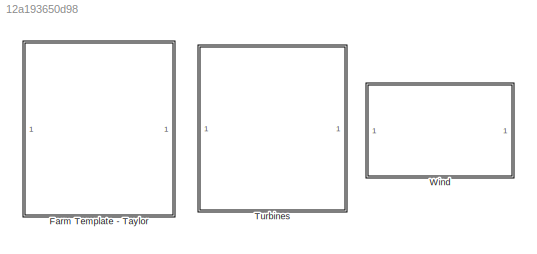
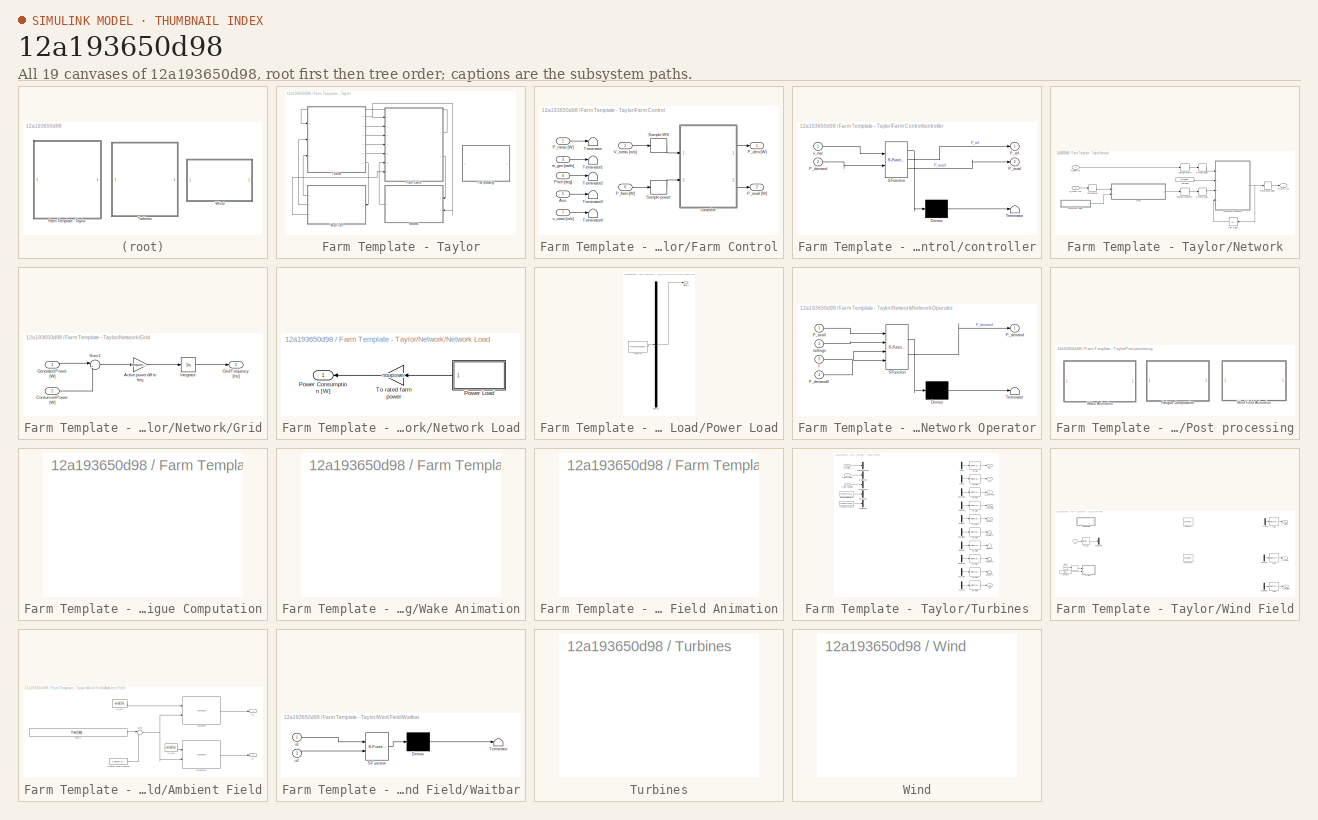
[diagram: thumbnail index - all 19 canvases of the model, root first then tree order]
MODEL slx_12a193650d98
KIND library
CONFIG AbsTol = auto
CONFIG EnableMultiTasking = on
CONFIG FixedStep = auto
CONFIG MaxStep = auto
CONFIG MinStep = auto
CONFIG RelTol = 1e-3
CONFIG SampleTimeConstraint = Unconstrained
CONFIG SolverName = ode45
CONFIG StartTime = 0.0
CONFIG StopTime = 10.0
BLOCK [SubSystem] Farm Template - Taylor
  OpenFcn = create_windfarm()
  Ports = []
BLOCK [SubSystem] Farm Template - Taylor/Farm Control
  Ports = [7, 2]
BLOCK [Inport] Farm Template - Taylor/Farm Control/ Aux
  Port = 5
BLOCK [Inport] Farm Template - Taylor/Farm Control/ v_mast [m//s]
  Port = 7
BLOCK [Outport] Farm Template - Taylor/Farm Control/P_avail [W]
  Port = 2
BLOCK [Outport] Farm Template - Taylor/Farm Control/P_dem [W]
BLOCK [Inport] Farm Template - Taylor/Farm Control/P_farm [W]
  Port = 6
BLOCK [Inport] Farm Template - Taylor/Farm Control/P_meas [W]
BLOCK [Inport] Farm Template - Taylor/Farm Control/Pitch [deg]
  Port = 4
BLOCK [ZeroOrderHold] Farm Template - Taylor/Farm Control/Sample WS
  SampleTime = wind.Ts
BLOCK [ZeroOrderHold] Farm Template - Taylor/Farm Control/Sample power
  SampleTime = wind.Ts
BLOCK [Terminator] Farm Template - Taylor/Farm Control/Terminator
BLOCK [Terminator] Farm Template - Taylor/Farm Control/Terminator1
BLOCK [Terminator] Farm Template - Taylor/Farm Control/Terminator2
BLOCK [Terminator] Farm Template - Taylor/Farm Control/Terminator3
BLOCK [Terminator] Farm Template - Taylor/Farm Control/Terminator4
BLOCK [Inport] Farm Template - Taylor/Farm Control/V_meas [m//s]
  Port = 2
BLOCK [SubSystem] Farm Template - Taylor/Farm Control/controller
  ErrorFcn = Stateflow.Translate.translate
  PermitHierarchicalResolution = ExplicitOnly
  Ports = [2, 2]
  SFBlockType = MATLAB Function
  TreatAsAtomicUnit = on
BLOCK [Demux] Farm Template - Taylor/Farm Control/controller/ Demux 
  Outputs = 1
  Ports = [1, 1]
BLOCK [S-Function] Farm Template - Taylor/Farm Control/controller/ SFunction 
  EnableBusSupport = off
  FunctionName = sf_sfun
  Parameters = parm
  PortCounts = [2 3]
  Ports = [2, 3]
  SFcnIsStateOwnerBlock = off
  SFunctionDeploymentMode = off
  Tag = Stateflow S-Function 21
BLOCK [Terminator] Farm Template - Taylor/Farm Control/controller/ Terminator 
BLOCK [Outport] Farm Template - Taylor/Farm Control/controller/P_avail
  Port = 2
BLOCK [Inport] Farm Template - Taylor/Farm Control/controller/P_demand
  Port = 2
BLOCK [Outport] Farm Template - Taylor/Farm Control/controller/P_ref
BLOCK [Inport] Farm Template - Taylor/Farm Control/controller/v_nac
BLOCK [Inport] Farm Template - Taylor/Farm Control/w_gen [rad//s]
  Port = 3
BLOCK [SubSystem] Farm Template - Taylor/Network
  Ports = [2, 1]
BLOCK [TransportDelay] Farm Template - Taylor/Network/F_meas delay
  DelayTime = parm.delay
  Ports = [1, 1]
BLOCK [SubSystem] Farm Template - Taylor/Network/Grid
  Ports = [2, 1]
BLOCK [Gain] Farm Template - Taylor/Network/Grid/Active power diff to freq
  Gain = frequencygain
BLOCK [Inport] Farm Template - Taylor/Network/Grid/Consumed Power [W]
  Port = 2
BLOCK [Inport] Farm Template - Taylor/Network/Grid/Generated Power [W]
BLOCK [Outport] Farm Template - Taylor/Network/Grid/Grid Frequency [Hz]
BLOCK [Integrator] Farm Template - Taylor/Network/Grid/Integrator
  InitialCondition = 50
  LimitOutput = on
  LowerSaturationLimit = 0
  Ports = [1, 1]
  UpperSaturationLimit = 100
BLOCK [Sum] Farm Template - Taylor/Network/Grid/Sum1
  Inputs = |+-
  Ports = [2, 1]
BLOCK [SubSystem] Farm Template - Taylor/Network/Network Load
  Ports = [0, 1]
BLOCK [Outport] Farm Template - Taylor/Network/Network Load/Power Consumption [W]
BLOCK [SubSystem] Farm Template - Taylor/Network/Network Load/Power Load
  ClipboardFcn = sigbuilder_block('clipboard');
  CloseFcn = sigbuilder_block('close');
  ContinueFcn = sigbuilder_block('continue')
  CopyFcn = sigbuilder_block('copy');
  DeleteFcn = sigbuilder_block('delete');
  LoadFcn = sigbuilder_block('load');
  MaskHideContents = on
  ModelCloseFcn = sigbuilder_block('modelClose');
  NameChangeFcn = sigbuilder_block('namechange');
  NameLocation = top
  OpenFcn = sigbuilder_block('open',[437.6 199.2 550.4 400 ]);
  PauseFcn = sigbuilder_block('pause')
  Ports = [0, 1]
  PreSaveFcn = sigbuilder_block('preSave');
  StartFcn = sigbuilder_block('start');
  StopFcn = sigbuilder_block('stop');
  Tag = STV Subsys
BLOCK [Demux] Farm Template - Taylor/Network/Network Load/Power Load/Demux
  DisplayOption = none
  Outputs = 1
  Ports = [1, 1]
  Tag = STV Demux
BLOCK [FromWorkspace] Farm Template - Taylor/Network/Network Load/Power Load/FromWs
  Tag = STV FromWs
  VariableName = tuvar
BLOCK [Outport] Farm Template - Taylor/Network/Network Load/Power Load/Signal 1
  Tag = STV Outport
BLOCK [Gain] Farm Template - Taylor/Network/Network Load/To rated farm power
  Gain = maxpower
  NameLocation = top
BLOCK [SubSystem] Farm Template - Taylor/Network/Network Operator
  ErrorFcn = Stateflow.Translate.translate
  PermitHierarchicalResolution = ExplicitOnly
  Ports = [4, 1]
  SFBlockType = MATLAB Function
  TreatAsAtomicUnit = on
BLOCK [Demux] Farm Template - Taylor/Network/Network Operator/ Demux 
  Outputs = 1
  Ports = [1, 1]
BLOCK [S-Function] Farm Template - Taylor/Network/Network Operator/ SFunction 
  EnableBusSupport = off
  FunctionName = sf_sfun
  Parameters = parm
  PortCounts = [4 2]
  Ports = [4, 2]
  SFcnIsStateOwnerBlock = off
  SFunctionDeploymentMode = off
  Tag = Stateflow S-Function 22
BLOCK [Terminator] Farm Template - Taylor/Network/Network Operator/ Terminator 
BLOCK [Inport] Farm Template - Taylor/Network/Network Operator/P_avail
BLOCK [Outport] Farm Template - Taylor/Network/Network Operator/P_demand
BLOCK [Inport] Farm Template - Taylor/Network/Network Operator/P_demand0
  Port = 4
BLOCK [Inport] Farm Template - Taylor/Network/Network Operator/f
  Port = 3
BLOCK [Inport] Farm Template - Taylor/Network/Network Operator/settings
  Port = 2
BLOCK [TransportDelay] Farm Template - Taylor/Network/P meas delay
  DelayTime = parm.delay
  Ports = [1, 1]
BLOCK [Inport] Farm Template - Taylor/Network/P_avail [W]
BLOCK [Outport] Farm Template - Taylor/Network/P_farm [W]
BLOCK [Inport] Farm Template - Taylor/Network/P_meas [W]
  Port = 2
BLOCK [TransportDelay] Farm Template - Taylor/Network/Reference delay
  DelayTime = .01
  Ports = [1, 1]
BLOCK [ZeroOrderHold] Farm Template - Taylor/Network/Sample frequency
  SampleTime = parm.Ts
BLOCK [ZeroOrderHold] Farm Template - Taylor/Network/Sample power
  SampleTime = wind.Ts
BLOCK [Sum] Farm Template - Taylor/Network/Total power
  IconShape = rectangular
  Inputs = +
  Ports = [1, 1]
BLOCK [UnitDelay] Farm Template - Taylor/Network/Unit Delay
  HasFrameUpgradeWarning = on
  NameLocation = top
  SampleTime = wind.Ts
BLOCK [Constant] Farm Template - Taylor/Network/settings
  OutDataTypeStr = double
  SampleTime = wind.Ts
  Value = parm.settings
BLOCK [SubSystem] Farm Template - Taylor/Post processing
  Ports = []
BLOCK [SubSystem] Farm Template - Taylor/Post processing/Fatigue Computation
  OpenFcn = fatigue=fatiguegui(logsout);
  Ports = []
BLOCK [SubSystem] Farm Template - Taylor/Post processing/Wake Animation
  OpenFcn = sys=bdroot(gcb);             \ncreate_wakeanim(sys,logsout);
  Ports = []
BLOCK [SubSystem] Farm Template - Taylor/Post processing/Wind Field Animation
  OpenFcn = sys=bdroot(gcb);\nwindanim(sys,logsout);
  Ports = []
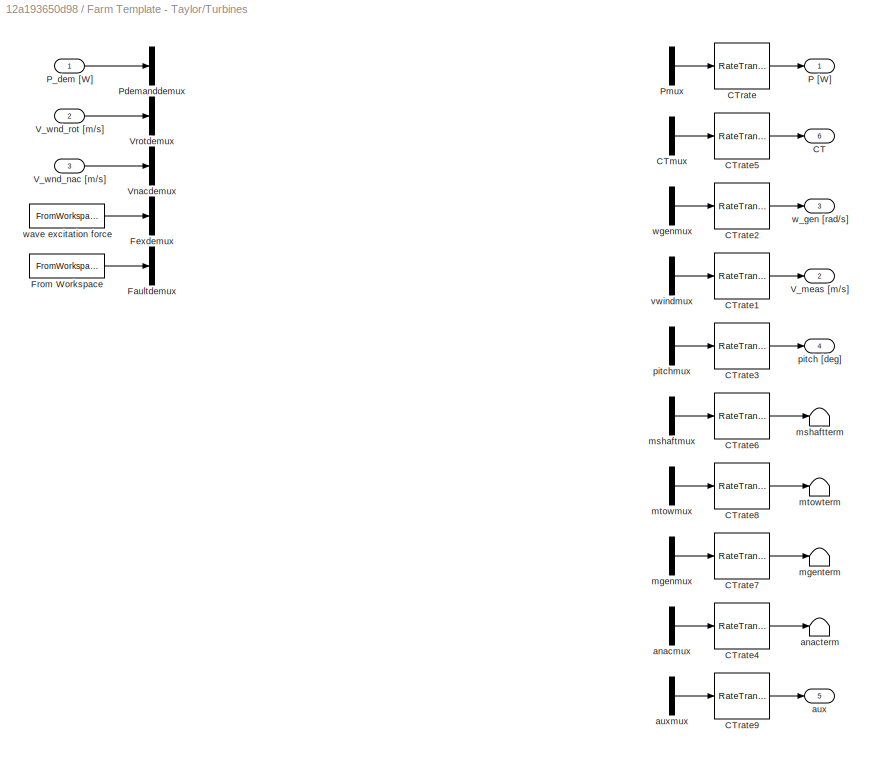
BLOCK [SubSystem] Farm Template - Taylor/Turbines
  LoadFcn = p=get_param(gcb,'UserData');                                                                                                                                            \n%If not compatible                                                                                                                                                      \n                                                              ...<+1124ch>
  Ports = [3, 6]
BLOCK [Outport] Farm Template - Taylor/Turbines/CT
  Port = 6
BLOCK [Mux] Farm Template - Taylor/Turbines/CTmux
  DisplayOption = bar
  Inputs = 2
  Ports = [2, 1]
BLOCK [RateTransition] Farm Template - Taylor/Turbines/CTrate
  Deterministic = off
  OutPortSampleTime = wind.Ts
BLOCK [RateTransition] Farm Template - Taylor/Turbines/CTrate1
  Deterministic = off
  OutPortSampleTime = wind.Ts
BLOCK [RateTransition] Farm Template - Taylor/Turbines/CTrate2
  Deterministic = off
  OutPortSampleTime = wind.Ts
BLOCK [RateTransition] Farm Template - Taylor/Turbines/CTrate3
  Deterministic = off
  OutPortSampleTime = wind.Ts
BLOCK [RateTransition] Farm Template - Taylor/Turbines/CTrate4
  Deterministic = off
  OutPortSampleTime = wind.Ts
BLOCK [RateTransition] Farm Template - Taylor/Turbines/CTrate5
  Deterministic = off
  OutPortSampleTime = wind.Ts
BLOCK [RateTransition] Farm Template - Taylor/Turbines/CTrate6
  Deterministic = off
  OutPortSampleTime = wind.Ts
BLOCK [RateTransition] Farm Template - Taylor/Turbines/CTrate7
  Deterministic = off
  OutPortSampleTime = wind.Ts
BLOCK [RateTransition] Farm Template - Taylor/Turbines/CTrate8
  Deterministic = off
  OutPortSampleTime = wind.Ts
BLOCK [RateTransition] Farm Template - Taylor/Turbines/CTrate9
  Deterministic = off
  OutPortSampleTime = wind.Ts
BLOCK [Demux] Farm Template - Taylor/Turbines/Faultdemux
  Outputs = 3
  Ports = [1, 3]
BLOCK [Demux] Farm Template - Taylor/Turbines/Fexdemux
  Outputs = 3
  Ports = [1, 3]
BLOCK [FromWorkspace] Farm Template - Taylor/Turbines/From Workspace
  VariableName = faultSignal
BLOCK [Outport] Farm Template - Taylor/Turbines/P [W]
BLOCK [Inport] Farm Template - Taylor/Turbines/P_dem [W]
BLOCK [Demux] Farm Template - Taylor/Turbines/Pdemanddemux
  Outputs = 3
  Ports = [1, 3]
BLOCK [Mux] Farm Template - Taylor/Turbines/Pmux
  DisplayOption = bar
  Inputs = 2
  Ports = [2, 1]
BLOCK [Outport] Farm Template - Taylor/Turbines/V_meas [m//s]
  Port = 2
BLOCK [Inport] Farm Template - Taylor/Turbines/V_wnd_nac [m//s]
  Port = 3
BLOCK [Inport] Farm Template - Taylor/Turbines/V_wnd_rot [m//s]
  Port = 2
BLOCK [Demux] Farm Template - Taylor/Turbines/Vnacdemux
  Outputs = 3
  Ports = [1, 3]
BLOCK [Demux] Farm Template - Taylor/Turbines/Vrotdemux
  Outputs = 3
  Ports = [1, 3]
BLOCK [Mux] Farm Template - Taylor/Turbines/anacmux
  DisplayOption = bar
  Inputs = 2
  Ports = [2, 1]
BLOCK [Terminator] Farm Template - Taylor/Turbines/anacterm
BLOCK [Outport] Farm Template - Taylor/Turbines/aux
  Port = 5
BLOCK [Mux] Farm Template - Taylor/Turbines/auxmux
  DisplayOption = bar
  Inputs = 2
  Ports = [2, 1]
BLOCK [Mux] Farm Template - Taylor/Turbines/mgenmux
  DisplayOption = bar
  Inputs = 2
  Ports = [2, 1]
BLOCK [Terminator] Farm Template - Taylor/Turbines/mgenterm
BLOCK [Mux] Farm Template - Taylor/Turbines/mshaftmux
  DisplayOption = bar
  Inputs = 2
  Ports = [2, 1]
BLOCK [Terminator] Farm Template - Taylor/Turbines/mshaftterm
BLOCK [Mux] Farm Template - Taylor/Turbines/mtowmux
  DisplayOption = bar
  Inputs = 2
  Ports = [2, 1]
BLOCK [Terminator] Farm Template - Taylor/Turbines/mtowterm
BLOCK [Outport] Farm Template - Taylor/Turbines/pitch [deg]
  Port = 4
BLOCK [Mux] Farm Template - Taylor/Turbines/pitchmux
  DisplayOption = bar
  Inputs = 2
  Ports = [2, 1]
BLOCK [Mux] Farm Template - Taylor/Turbines/vwindmux
  DisplayOption = bar
  Inputs = 2
  Ports = [2, 1]
BLOCK [Outport] Farm Template - Taylor/Turbines/w_gen [rad//s]
  Port = 3
BLOCK [FromWorkspace] Farm Template - Taylor/Turbines/wave excitation force
  VariableName = Fex
BLOCK [Mux] Farm Template - Taylor/Turbines/wgenmux
  DisplayOption = bar
  Inputs = 2
  Ports = [2, 1]
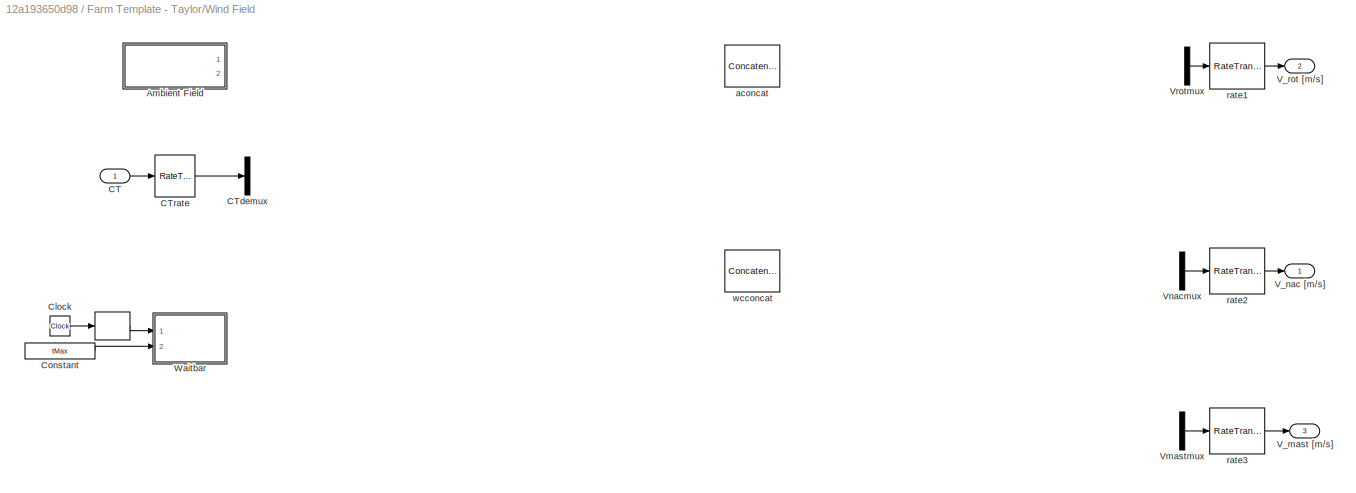
BLOCK [SubSystem] Farm Template - Taylor/Wind Field
  OpenFcn = [wfile,wpath,wfidx]=uigetfile('*.mat','Select a Wind Data File');                                                                                                                                                                                                                                                                                              \nif isequal(wfile,0) || isequal(wpath,0)         ...<+15492ch>
  Ports = [1, 3]
BLOCK [RateTransition] Farm Template - Taylor/Wind Field/ 
  Deterministic = off
  OutPortSampleTime = wind.Ts
BLOCK [SubSystem] Farm Template - Taylor/Wind Field/Ambient Field
  Ports = [0, 2]
BLOCK [Reference] Farm Template - Taylor/Wind Field/Ambient Field/Counter Free-Running  REF=simulink/Sources/Counter
Free-Running
  Ports = [0, 1]
  SourceBlock = simulink/Sources/Counter\nFree-Running
  SourceType = Counter Free-Running
BLOCK [Selector] Farm Template - Taylor/Wind Field/Ambient Field/Selector
  IndexOptions = Select all,Index vector (port)
  Indices = [1 3],1
  InputPortWidth = 3
  NumberOfDimensions = 2
  OutputSizes = 1,1
  Ports = [2, 1]
BLOCK [Selector] Farm Template - Taylor/Wind Field/Ambient Field/Selector1
  IndexOptions = Select all,Index vector (port)
  Indices = [1 3],1
  InputPortWidth = 3
  NumberOfDimensions = 2
  OutputSizes = 1,1
  Ports = [2, 1]
BLOCK [Sum] Farm Template - Taylor/Wind Field/Ambient Field/Sum
  Inputs = |++
  Ports = [2, 1]
BLOCK [Constant] Farm Template - Taylor/Wind Field/Ambient Field/Turb x
  Value = floor((abs(wind.xgrids-max(wind.xgrids))*wind.grid.size)/(wind.Ts*wind.Umean))+1
BLOCK [Outport] Farm Template - Taylor/Wind Field/Ambient Field/Ux
BLOCK [Constant] Farm Template - Taylor/Wind Field/Ambient Field/Ux_full
  Value = wind.Ux
BLOCK [Outport] Farm Template - Taylor/Wind Field/Ambient Field/Uy
  Port = 2
BLOCK [Constant] Farm Template - Taylor/Wind Field/Ambient Field/Uy_full
  Value = wind.Uy
BLOCK [Inport] Farm Template - Taylor/Wind Field/CT
BLOCK [Demux] Farm Template - Taylor/Wind Field/CTdemux
  Outputs = 3
  Ports = [1, 3]
BLOCK [RateTransition] Farm Template - Taylor/Wind Field/CTrate
  Deterministic = off
  OutPortSampleTime = wind.Ts
BLOCK [Clock] Farm Template - Taylor/Wind Field/Clock
BLOCK [Constant] Farm Template - Taylor/Wind Field/Constant
  SampleTime = 100*wind.Ts
  Value = tMax
BLOCK [Outport] Farm Template - Taylor/Wind Field/V_mast [m//s]
  Port = 3
BLOCK [Outport] Farm Template - Taylor/Wind Field/V_nac [m//s]
BLOCK [Outport] Farm Template - Taylor/Wind Field/V_rot [m//s]
  Port = 2
BLOCK [Mux] Farm Template - Taylor/Wind Field/Vmastmux
  DisplayOption = bar
  Inputs = 2
  Ports = [2, 1]
BLOCK [Mux] Farm Template - Taylor/Wind Field/Vnacmux
  DisplayOption = bar
  Inputs = 2
  Ports = [2, 1]
BLOCK [Mux] Farm Template - Taylor/Wind Field/Vrotmux
  DisplayOption = bar
  Inputs = 2
  Ports = [2, 1]
BLOCK [SubSystem] Farm Template - Taylor/Wind Field/Waitbar
  ErrorFcn = Stateflow.Translate.translate
  PermitHierarchicalResolution = ExplicitOnly
  Ports = [2]
  SFBlockType = MATLAB Function
  TreatAsAtomicUnit = on
BLOCK [Demux] Farm Template - Taylor/Wind Field/Waitbar/ Demux 
  Outputs = 1
  Ports = [1, 1]
BLOCK [S-Function] Farm Template - Taylor/Wind Field/Waitbar/ SFunction 
  EnableBusSupport = off
  FunctionName = sf_sfun
  PortCounts = [2 1]
  Ports = [2, 1]
  SFcnIsStateOwnerBlock = off
  SFunctionDeploymentMode = off
  Tag = Stateflow S-Function 9
BLOCK [Terminator] Farm Template - Taylor/Wind Field/Waitbar/ Terminator 
BLOCK [Inport] Farm Template - Taylor/Wind Field/Waitbar/u1
BLOCK [Inport] Farm Template - Taylor/Wind Field/Waitbar/u2
  Port = 2
BLOCK [Concatenate] Farm Template - Taylor/Wind Field/aconcat
  ConcatenateDimension = 2
  Mode = Multidimensional array
  Ports = [2, 1]
BLOCK [RateTransition] Farm Template - Taylor/Wind Field/rate1
  Deterministic = off
  OutPortSampleTime = wind.Ts
BLOCK [RateTransition] Farm Template - Taylor/Wind Field/rate2
  Deterministic = off
  OutPortSampleTime = wind.Ts
BLOCK [RateTransition] Farm Template - Taylor/Wind Field/rate3
  Deterministic = off
  OutPortSampleTime = wind.Ts
BLOCK [Concatenate] Farm Template - Taylor/Wind Field/wcconcat
  ConcatenateDimension = 2
  Mode = Multidimensional array
  Ports = [2, 1]
BLOCK [SubSystem] Turbines
  OpenFcn = libturbines
  Ports = []
BLOCK [SubSystem] Wind
  OpenFcn = libwind
  Ports = []
LINE Farm Template - Taylor/Farm Control/ Aux:1 -> Farm Template - Taylor/Farm Control/Terminator3:1
LINE Farm Template - Taylor/Farm Control/ v_mast [m//s]:1 -> Farm Template - Taylor/Farm Control/Terminator4:1
LINE Farm Template - Taylor/Farm Control/P_farm [W]:1 -> Farm Template - Taylor/Farm Control/Sample power:1
LINE Farm Template - Taylor/Farm Control/P_meas [W]:1 -> Farm Template - Taylor/Farm Control/Terminator:1
LINE Farm Template - Taylor/Farm Control/Pitch [deg]:1 -> Farm Template - Taylor/Farm Control/Terminator2:1
LINE Farm Template - Taylor/Farm Control/Sample WS:1 -> Farm Template - Taylor/Farm Control/controller:1
LINE Farm Template - Taylor/Farm Control/Sample power:1 -> Farm Template - Taylor/Farm Control/controller:2
LINE Farm Template - Taylor/Farm Control/V_meas [m//s]:1 -> Farm Template - Taylor/Farm Control/Sample WS:1
LINE Farm Template - Taylor/Farm Control/controller:1 -> Farm Template - Taylor/Farm Control/P_dem [W]:1
LINE Farm Template - Taylor/Farm Control/controller:2 -> Farm Template - Taylor/Farm Control/P_avail [W]:1
LINE Farm Template - Taylor/Farm Control/w_gen [rad//s]:1 -> Farm Template - Taylor/Farm Control/Terminator1:1
LINE Farm Template - Taylor/Farm Control:1 -> Farm Template - Taylor/Turbines:1
LINE Farm Template - Taylor/Farm Control:2 -> Farm Template - Taylor/Network:1
LINE Farm Template - Taylor/Network/F_meas delay:1 -> Farm Template - Taylor/Network/Network Operator:3
LINE Farm Template - Taylor/Network/Grid/Active power diff to freq:1 -> Farm Template - Taylor/Network/Grid/Integrator:1
LINE Farm Template - Taylor/Network/Grid/Consumed Power [W]:1 -> Farm Template - Taylor/Network/Grid/Sum1:2
LINE Farm Template - Taylor/Network/Grid/Generated Power [W]:1 -> Farm Template - Taylor/Network/Grid/Sum1:1
LINE Farm Template - Taylor/Network/Grid/Integrator:1 -> Farm Template - Taylor/Network/Grid/Grid Frequency [Hz]:1
LINE Farm Template - Taylor/Network/Grid/Sum1:1 -> Farm Template - Taylor/Network/Grid/Active power diff to freq:1
LINE Farm Template - Taylor/Network/Grid:1 -> Farm Template - Taylor/Network/Sample frequency:1
LINE Farm Template - Taylor/Network/Network Load/Power Load:1 -> Farm Template - Taylor/Network/Network Load/To rated farm power:1
LINE Farm Template - Taylor/Network/Network Load/To rated farm power:1 -> Farm Template - Taylor/Network/Network Load/Power Consumption [W]:1
LINE Farm Template - Taylor/Network/Network Load:1 -> Farm Template - Taylor/Network/Grid:2
NET Farm Template - Taylor/Network/Network Operator:1 -> Farm Template - Taylor/Network/Reference delay:1, Farm Template - Taylor/Network/Unit Delay:1
LINE Farm Template - Taylor/Network/P meas delay:1 -> Farm Template - Taylor/Network/Network Operator:1
LINE Farm Template - Taylor/Network/P_avail [W]:1 -> Farm Template - Taylor/Network/Sample power:1
LINE Farm Template - Taylor/Network/P_meas [W]:1 -> Farm Template - Taylor/Network/Total power:1
LINE Farm Template - Taylor/Network/Reference delay:1 -> Farm Template - Taylor/Network/P_farm [W]:1
LINE Farm Template - Taylor/Network/Sample frequency:1 -> Farm Template - Taylor/Network/F_meas delay:1
LINE Farm Template - Taylor/Network/Sample power:1 -> Farm Template - Taylor/Network/P meas delay:1
LINE Farm Template - Taylor/Network/Total power:1 -> Farm Template - Taylor/Network/Grid:1
LINE Farm Template - Taylor/Network/Unit Delay:1 -> Farm Template - Taylor/Network/Network Operator:4
LINE Farm Template - Taylor/Network/settings:1 -> Farm Template - Taylor/Network/Network Operator:2
LINE Farm Template - Taylor/Network:1 -> Farm Template - Taylor/Farm Control:6
LINE Farm Template - Taylor/Turbines/CTmux:1 -> Farm Template - Taylor/Turbines/CTrate5:1
LINE Farm Template - Taylor/Turbines/CTrate1:1 -> Farm Template - Taylor/Turbines/V_meas [m//s]:1
LINE Farm Template - Taylor/Turbines/CTrate2:1 -> Farm Template - Taylor/Turbines/w_gen [rad//s]:1
LINE Farm Template - Taylor/Turbines/CTrate3:1 -> Farm Template - Taylor/Turbines/pitch [deg]:1
LINE Farm Template - Taylor/Turbines/CTrate4:1 -> Farm Template - Taylor/Turbines/anacterm:1
LINE Farm Template - Taylor/Turbines/CTrate5:1 -> Farm Template - Taylor/Turbines/CT:1
LINE Farm Template - Taylor/Turbines/CTrate6:1 -> Farm Template - Taylor/Turbines/mshaftterm:1
LINE Farm Template - Taylor/Turbines/CTrate7:1 -> Farm Template - Taylor/Turbines/mgenterm:1
LINE Farm Template - Taylor/Turbines/CTrate8:1 -> Farm Template - Taylor/Turbines/mtowterm:1
LINE Farm Template - Taylor/Turbines/CTrate9:1 -> Farm Template - Taylor/Turbines/aux:1
LINE Farm Template - Taylor/Turbines/CTrate:1 -> Farm Template - Taylor/Turbines/P [W]:1
LINE Farm Template - Taylor/Turbines/From Workspace:1 -> Farm Template - Taylor/Turbines/Faultdemux:1
LINE Farm Template - Taylor/Turbines/P_dem [W]:1 -> Farm Template - Taylor/Turbines/Pdemanddemux:1
LINE Farm Template - Taylor/Turbines/Pmux:1 -> Farm Template - Taylor/Turbines/CTrate:1
LINE Farm Template - Taylor/Turbines/V_wnd_nac [m//s]:1 -> Farm Template - Taylor/Turbines/Vnacdemux:1
LINE Farm Template - Taylor/Turbines/V_wnd_rot [m//s]:1 -> Farm Template - Taylor/Turbines/Vrotdemux:1
LINE Farm Template - Taylor/Turbines/anacmux:1 -> Farm Template - Taylor/Turbines/CTrate4:1
LINE Farm Template - Taylor/Turbines/auxmux:1 -> Farm Template - Taylor/Turbines/CTrate9:1
LINE Farm Template - Taylor/Turbines/mgenmux:1 -> Farm Template - Taylor/Turbines/CTrate7:1
LINE Farm Template - Taylor/Turbines/mshaftmux:1 -> Farm Template - Taylor/Turbines/CTrate6:1
LINE Farm Template - Taylor/Turbines/mtowmux:1 -> Farm Template - Taylor/Turbines/CTrate8:1
LINE Farm Template - Taylor/Turbines/pitchmux:1 -> Farm Template - Taylor/Turbines/CTrate3:1
LINE Farm Template - Taylor/Turbines/vwindmux:1 -> Farm Template - Taylor/Turbines/CTrate1:1
LINE Farm Template - Taylor/Turbines/wave excitation force:1 -> Farm Template - Taylor/Turbines/Fexdemux:1
LINE Farm Template - Taylor/Turbines/wgenmux:1 -> Farm Template - Taylor/Turbines/CTrate2:1
NET Farm Template - Taylor/Turbines:1 -> Farm Template - Taylor/Farm Control:1, Farm Template - Taylor/Network:2
LINE Farm Template - Taylor/Turbines:2 -> Farm Template - Taylor/Farm Control:2
LINE Farm Template - Taylor/Turbines:3 -> Farm Template - Taylor/Farm Control:3
LINE Farm Template - Taylor/Turbines:4 -> Farm Template - Taylor/Farm Control:4
LINE Farm Template - Taylor/Turbines:5 -> Farm Template - Taylor/Farm Control:5
LINE Farm Template - Taylor/Turbines:6 -> Farm Template - Taylor/Wind Field:1
LINE Farm Template - Taylor/Wind Field/ :1 -> Farm Template - Taylor/Wind Field/Waitbar:1
LINE Farm Template - Taylor/Wind Field/Ambient Field/Counter Free-Running:1 -> Farm Template - Taylor/Wind Field/Ambient Field/Sum:2
LINE Farm Template - Taylor/Wind Field/Ambient Field/Selector1:1 -> Farm Template - Taylor/Wind Field/Ambient Field/Uy:1
LINE Farm Template - Taylor/Wind Field/Ambient Field/Selector:1 -> Farm Template - Taylor/Wind Field/Ambient Field/Ux:1
NET Farm Template - Taylor/Wind Field/Ambient Field/Sum:1 -> Farm Template - Taylor/Wind Field/Ambient Field/Selector1:2, Farm Template - Taylor/Wind Field/Ambient Field/Selector:2
LINE Farm Template - Taylor/Wind Field/Ambient Field/Turb x:1 -> Farm Template - Taylor/Wind Field/Ambient Field/Sum:1
LINE Farm Template - Taylor/Wind Field/Ambient Field/Ux_full:1 -> Farm Template - Taylor/Wind Field/Ambient Field/Selector:1
LINE Farm Template - Taylor/Wind Field/Ambient Field/Uy_full:1 -> Farm Template - Taylor/Wind Field/Ambient Field/Selector1:1
LINE Farm Template - Taylor/Wind Field/CT:1 -> Farm Template - Taylor/Wind Field/CTrate:1
LINE Farm Template - Taylor/Wind Field/CTrate:1 -> Farm Template - Taylor/Wind Field/CTdemux:1
LINE Farm Template - Taylor/Wind Field/Clock:1 -> Farm Template - Taylor/Wind Field/ :1
LINE Farm Template - Taylor/Wind Field/Constant:1 -> Farm Template - Taylor/Wind Field/Waitbar:2
LINE Farm Template - Taylor/Wind Field/Vmastmux:1 -> Farm Template - Taylor/Wind Field/rate3:1
LINE Farm Template - Taylor/Wind Field/Vnacmux:1 -> Farm Template - Taylor/Wind Field/rate2:1
LINE Farm Template - Taylor/Wind Field/Vrotmux:1 -> Farm Template - Taylor/Wind Field/rate1:1
LINE Farm Template - Taylor/Wind Field/rate1:1 -> Farm Template - Taylor/Wind Field/V_rot [m//s]:1
LINE Farm Template - Taylor/Wind Field/rate2:1 -> Farm Template - Taylor/Wind Field/V_nac [m//s]:1
LINE Farm Template - Taylor/Wind Field/rate3:1 -> Farm Template - Taylor/Wind Field/V_mast [m//s]:1
LINE Farm Template - Taylor/Wind Field:1 -> Farm Template - Taylor/Turbines:3
LINE Farm Template - Taylor/Wind Field:2 -> Farm Template - Taylor/Turbines:2
LINE Farm Template - Taylor/Wind Field:3 -> Farm Template - Taylor/Farm Control:7
note: NET lines group one-source signal fan-out (src -> all destinations, sorted); 1:1 wires keep LINE
CHART Farm Template - Taylor/Wind Field/Waitbar states=1 transitions=1
  STATE_LABEL 'eML_blk_kernel()'
  STATE_LABEL "SCRIPT:\nfunction fcn(u1,u2)\ncoder.extrinsic('waitbar');\n\nwb = waitbar(u1/u2);\n\nif (u1/u2) == 1\n    close(wb)\nend\n"
CHART Farm Template - Taylor/Farm Control/controller states=1 transitions=1
  STATE_LABEL 'eML_blk_kernel()'
  STATE_LABEL 'SCRIPT:\nfunction [P_ref,P_avail]  = Farm_Controller(v_nac,P_demand,parm)\n%\n% Farm_Controller estimates the available power at the farm and distributes the \n% power references proportional to the available power at each wind turbine.\n%\n% [P_ref,P_avail_total]  = Farm_Controller(v_nac,P_demand)\n%\n% vn : the wind speed at wind turbine number n.\n%\n% P_demand : The demanded power by the operator.\n%\n% P...<+840ch>'
CHART Farm Template - Taylor/Network/Network Operator states=1 transitions=1
  STATE_LABEL 'eML_blk_kernel()'
  STATE_LABEL 'SCRIPT:\nfunction P_demand = TSO(P_avail,settings,f,P_demand0,parm)\n%\n% TSO provides the demanded power to the wind farm controller.\n%\n% P_avail : Aavailable power at the farm level.\n%\n% mode : The operation mode.\n%\n% settings : The settings corresponding to the operational mode\n%\n% f : Frequency of the network\n%\n% P_deamnd0 : The last update of the deamded power\n%\n% Ts : Sample Time\n%\n% Time-stamp...<+1289ch>'
CHART  states=0 transitions=0
CHART  states=0 transitions=0
CHART  states=0 transitions=0
